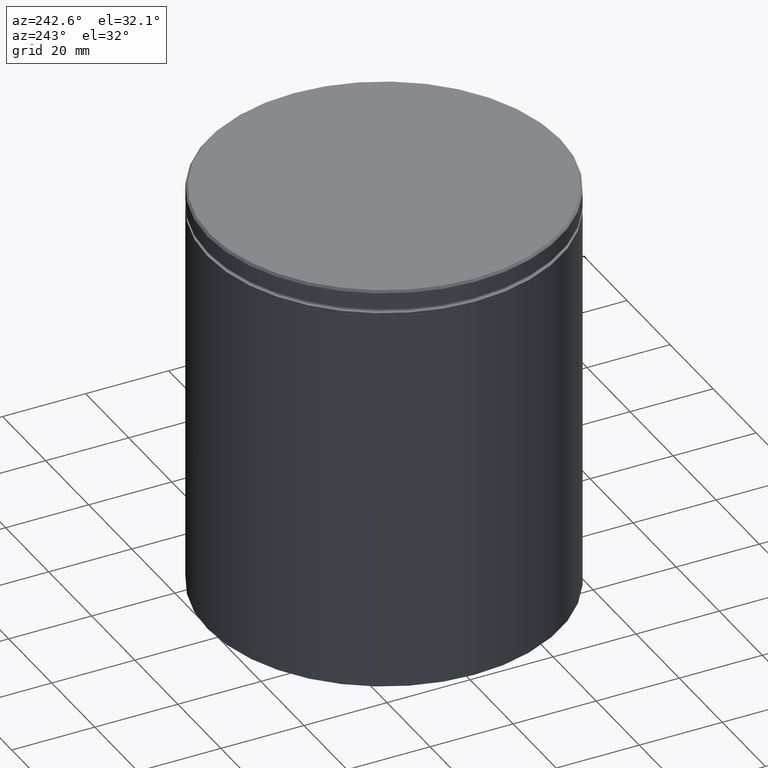
[diagram: clean part render]
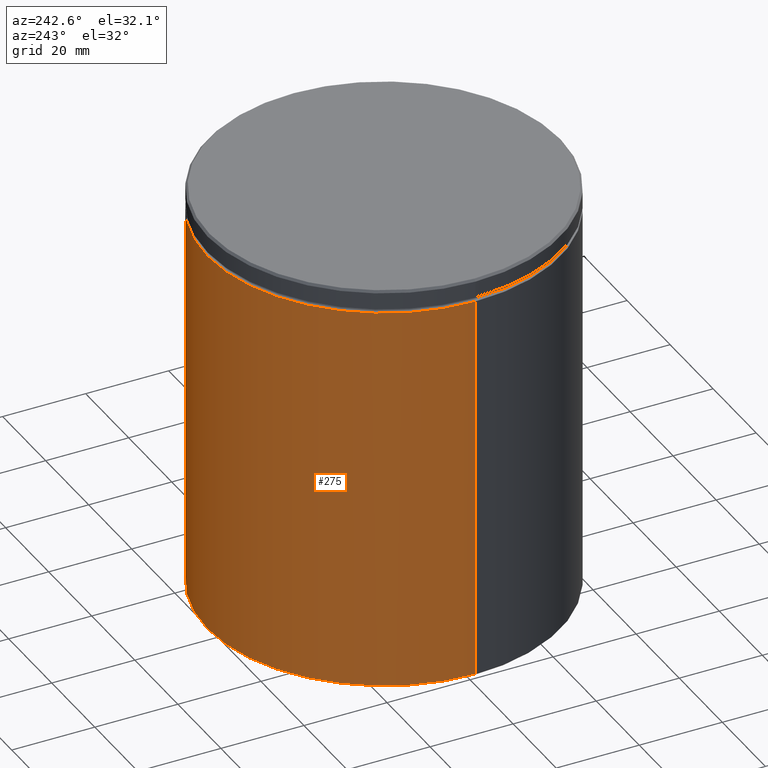
[diagram: same view with one face highlighted and labeled with its STEP entity id]
A machine part, auxiliary view. The second image highlights one B-rep face of the part: STEP entity #275.
In plain terms, the highlighted cylindrical surface (partial cylindrical patch) has radius 42.5 mm, axis along (-0, -0, 1).
Its self-contained STEP definition (entity closure, byte-faithful):
#6 = ORIENTED_EDGE ( 'NONE', *, *, #15, .T. ) ;
#15 = EDGE_CURVE ( 'NONE', #50, #303, #260, .T. ) ;
#19 = CARTESIAN_POINT ( 'NONE',  ( 0.000000000000000000, 0.000000000000000000, -99.49999999999997158 ) ) ;
#32 = EDGE_CURVE ( 'NONE', #294, #339, #448, .T. ) ;
#50 = VERTEX_POINT ( 'NONE', #197 ) ;
#55 = VECTOR ( 'NONE', #412, 1000.000000000000000 ) ;
#57 = DIRECTION ( 'NONE',  ( -1.000000000000000000, 0.000000000000000000, 0.000000000000000000 ) ) ;
#63 = EDGE_CURVE ( 'NONE', #50, #294, #501, .T. ) ;
#67 = AXIS2_PLACEMENT_3D ( 'NONE', #411, #450, #280 ) ;
#80 = CARTESIAN_POINT ( 'NONE',  ( 0.000000000000000000, 0.000000000000000000, 0.000000000000000000 ) ) ;
#111 = DIRECTION ( 'NONE',  ( 1.000000000000000000, 0.000000000000000000, 0.000000000000000000 ) ) ;
#119 = CARTESIAN_POINT ( 'NONE',  ( 42.50000000000000000, 0.000000000000000000, -5.500000000000000000 ) ) ;
#142 = CARTESIAN_POINT ( 'NONE',  ( -42.50000000000000000, 5.204748896376250896E-15, 0.000000000000000000 ) ) ;
#155 = CYLINDRICAL_SURFACE ( 'NONE', #463, 42.50000000000000000 ) ;
#197 = CARTESIAN_POINT ( 'NONE',  ( 42.50000000000000000, 0.000000000000000000, -99.49999999999997158 ) ) ;
#217 = CARTESIAN_POINT ( 'NONE',  ( -42.50000000000000000, 5.204748896376250896E-15, -99.49999999999997158 ) ) ;
#260 = CIRCLE ( 'NONE', #373, 42.50000000000000000 ) ;
#262 = ORIENTED_EDGE ( 'NONE', *, *, #506, .T. ) ;
#269 = ORIENTED_EDGE ( 'NONE', *, *, #32, .F. ) ;
#275 = ADVANCED_FACE ( 'NONE', ( #556 ), #155, .T. ) ;
#280 = DIRECTION ( 'NONE',  ( 1.000000000000000000, 0.000000000000000000, 0.000000000000000000 ) ) ;
#285 = CARTESIAN_POINT ( 'NONE',  ( 42.50000000000000000, 0.000000000000000000, 0.000000000000000000 ) ) ;
#294 = VERTEX_POINT ( 'NONE', #119 ) ;
#298 = ORIENTED_EDGE ( 'NONE', *, *, #63, .F. ) ;
#303 = VERTEX_POINT ( 'NONE', #217 ) ;
#313 = DIRECTION ( 'NONE',  ( -0.000000000000000000, -0.000000000000000000, 1.000000000000000000 ) ) ;
#323 = DIRECTION ( 'NONE',  ( -0.000000000000000000, -0.000000000000000000, 1.000000000000000000 ) ) ;
#339 = VERTEX_POINT ( 'NONE', #490 ) ;
#373 = AXIS2_PLACEMENT_3D ( 'NONE', #19, #323, #57 ) ;
#392 = EDGE_LOOP ( 'NONE', ( #6, #262, #269, #298 ) ) ;
#411 = CARTESIAN_POINT ( 'NONE',  ( 0.000000000000000000, 0.000000000000000000, -5.500000000000000000 ) ) ;
#412 = DIRECTION ( 'NONE',  ( -0.000000000000000000, -0.000000000000000000, 1.000000000000000000 ) ) ;
#419 = DIRECTION ( 'NONE',  ( -0.000000000000000000, -0.000000000000000000, 1.000000000000000000 ) ) ;
#448 = CIRCLE ( 'NONE', #67, 42.50000000000000000 ) ;
#450 = DIRECTION ( 'NONE',  ( -0.000000000000000000, -0.000000000000000000, 1.000000000000000000 ) ) ;
#463 = AXIS2_PLACEMENT_3D ( 'NONE', #80, #419, #111 ) ;
#490 = CARTESIAN_POINT ( 'NONE',  ( -42.50000000000000000, 5.204748896376250896E-15, -5.500000000000000000 ) ) ;
#501 = LINE ( 'NONE', #285, #55 ) ;
#506 = EDGE_CURVE ( 'NONE', #303, #339, #535, .T. ) ;
#535 = LINE ( 'NONE', #142, #546 ) ;
#546 = VECTOR ( 'NONE', #313, 1000.000000000000000 ) ;
#556 = FACE_OUTER_BOUND ( 'NONE', #392, .T. ) ;